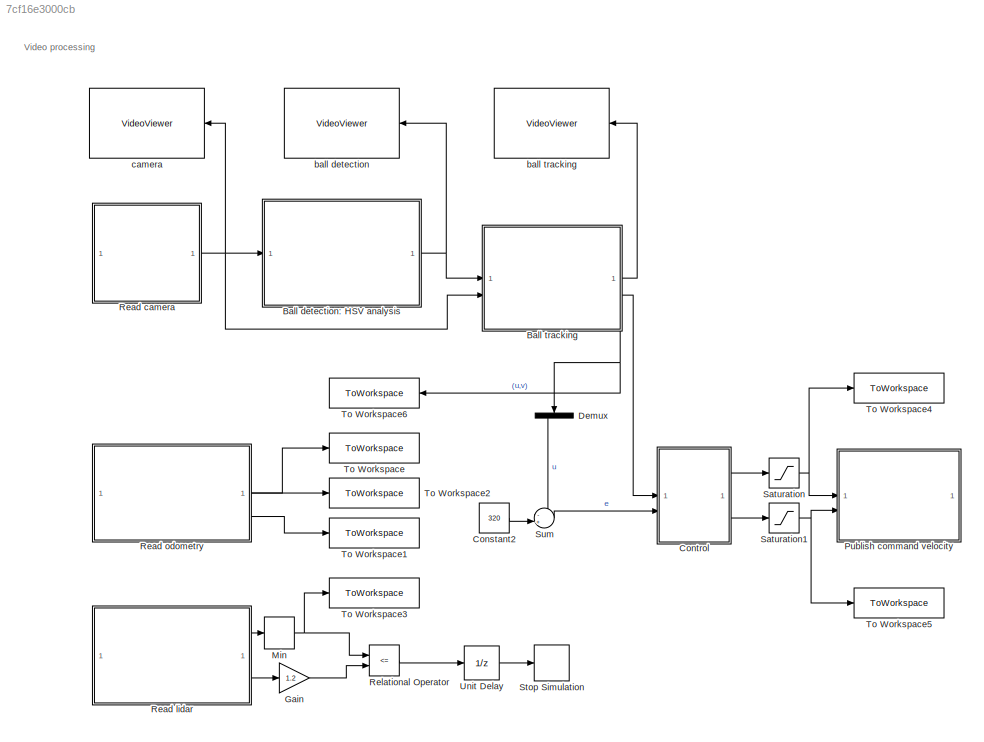
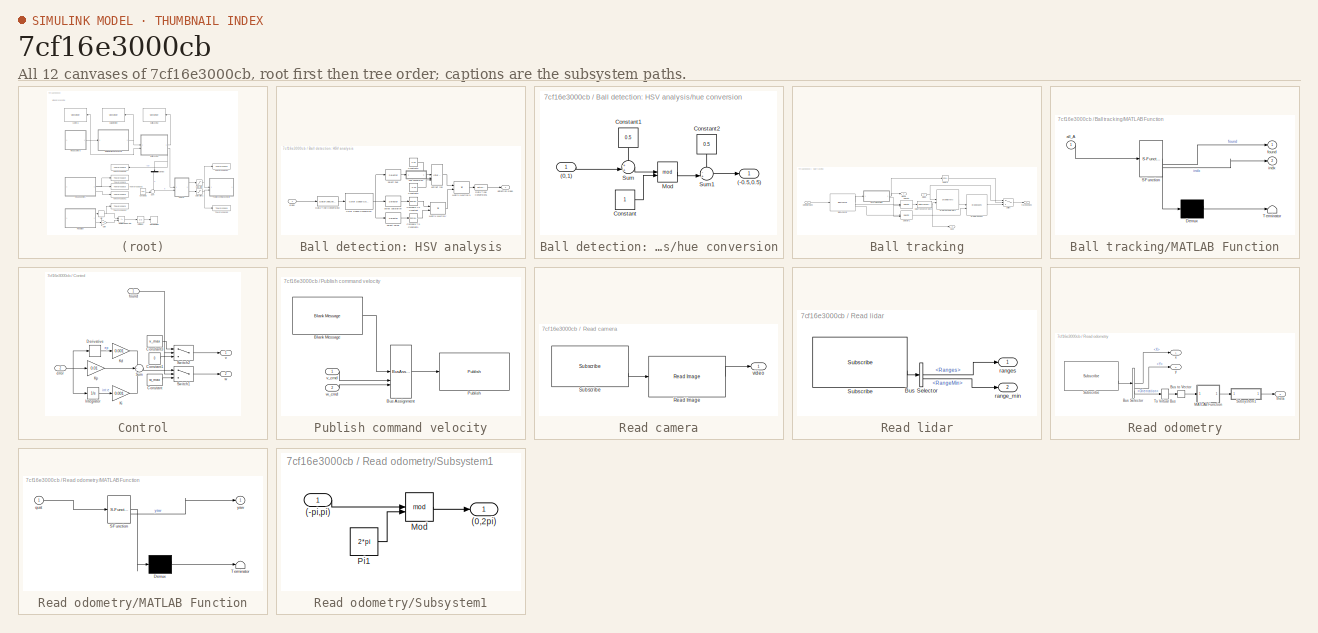
[diagram: thumbnail index - all 12 canvases of the model, root first then tree order]
MODEL slx_7cf16e3000cb
KIND model
CONFIG AbsTol = auto
CONFIG EnableMultiTasking = off
CONFIG FixedStep = 1/f_sim
CONFIG MaxStep = auto
CONFIG MinStep = auto
CONFIG RelTol = 1e-3
CONFIG SampleTimeConstraint = Unconstrained
CONFIG SolverName = FixedStepAuto
CONFIG StartTime = 0.0
CONFIG StopTime = inf
WORKSPACE source: mxarray member
WORKSPACE SL_ROS_VariableLengthArrays_MaxSizes: object (value not decoded)
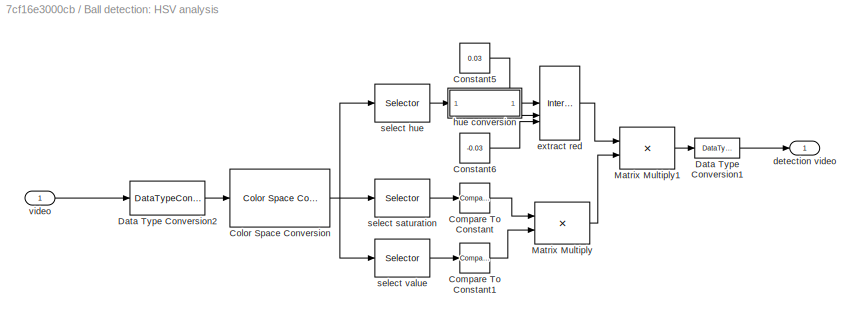
BLOCK [SubSystem] Ball detection: HSV analysis
  NameLocation = top
BLOCK [Reference] Ball detection: HSV analysis/Color Space Conversion  REF=visionconversions/Color Space
 Conversion
  SourceBlock = visionconversions/Color Space\n Conversion
  SourceType = Color Space Conversion
BLOCK [Reference] Ball detection: HSV analysis/Compare To Constant  REF=simulink/Logic and Bit
Operations/Compare
To Constant
  SourceBlock = simulink/Logic and Bit\nOperations/Compare\nTo Constant
  SourceType = Compare To Constant
BLOCK [Reference] Ball detection: HSV analysis/Compare To Constant1  REF=simulink/Logic and Bit
Operations/Compare
To Constant
  SourceBlock = simulink/Logic and Bit\nOperations/Compare\nTo Constant
  SourceType = Compare To Constant
BLOCK [Constant] Ball detection: HSV analysis/Constant5
  Value = 0.03
BLOCK [Constant] Ball detection: HSV analysis/Constant6
  Value = -0.03
BLOCK [DataTypeConversion] Ball detection: HSV analysis/Data Type Conversion1
  OutDataTypeStr = boolean
  RndMeth = Floor
  SaturateOnIntegerOverflow = off
BLOCK [DataTypeConversion] Ball detection: HSV analysis/Data Type Conversion2
  RndMeth = Floor
  SaturateOnIntegerOverflow = off
BLOCK [Product] Ball detection: HSV analysis/Matrix Multiply
BLOCK [Product] Ball detection: HSV analysis/Matrix Multiply1
BLOCK [Outport] Ball detection: HSV analysis/detection video
BLOCK [Reference] Ball detection: HSV analysis/extract red  REF=simulink/Logic and Bit
Operations/Interval Test
Dynamic
  SourceBlock = simulink/Logic and Bit\nOperations/Interval Test\nDynamic
  SourceType = Interval Test Dynamic
BLOCK [SubSystem] Ball detection: HSV analysis/hue conversion
BLOCK [Outport] Ball detection: HSV analysis/hue conversion/(-0.5,0.5)
BLOCK [Inport] Ball detection: HSV analysis/hue conversion/(0,1)
BLOCK [Constant] Ball detection: HSV analysis/hue conversion/Constant
BLOCK [Constant] Ball detection: HSV analysis/hue conversion/Constant1
  NameLocation = left
  Value = 0.5
BLOCK [Constant] Ball detection: HSV analysis/hue conversion/Constant2
  NameLocation = left
  Value = 0.5
BLOCK [Math] Ball detection: HSV analysis/hue conversion/Mod
  Operator = mod
BLOCK [Sum] Ball detection: HSV analysis/hue conversion/Sum
  Inputs = ++|
BLOCK [Sum] Ball detection: HSV analysis/hue conversion/Sum1
  Inputs = -+|
BLOCK [Selector] Ball detection: HSV analysis/select hue
  IndexOptions = Select all,Select all,Index vector (dialog)
  Indices = [1 3],1,1
  InputPortWidth = 3
  NumberOfDimensions = 3
  OutputSizes = 1,1,1
BLOCK [Selector] Ball detection: HSV analysis/select saturation
  IndexOptions = Select all,Select all,Index vector (dialog)
  Indices = [1 3],1,2
  InputPortWidth = 3
  NumberOfDimensions = 3
  OutputSizes = 1,1,1
BLOCK [Selector] Ball detection: HSV analysis/select value
  IndexOptions = Select all,Select all,Index vector (dialog)
  Indices = [1 3],1,2
  InputPortWidth = 3
  NumberOfDimensions = 3
  OutputSizes = 1,1,1
BLOCK [Inport] Ball detection: HSV analysis/video
BLOCK [SubSystem] Ball tracking
  NameLocation = top
  PortSchema = {"entries":[{"content":{"sides":[{"content":{"connectorIds":["In1","In2"]},"type":"ConnectorPlacement.EquallySpacedRectSide","uuid":"de28c0a8-2bee-4438-9aac-76140af63e3d"},{"content":{"connectorIds":["Out1","Out2"],"side":"RIGHT"},"type":"ConnectorPlacement.EquallySpacedRectSide","uuid":"c12b1d92-09c4-48b4-970d-3ef4bedca178"},{"content":{"side":"TOP"},"type":"ConnectorPlacement.EquallySpacedRectSi...<+385ch>
BLOCK [Reference] Ball tracking/Blob Analysis  REF=visionstatistics/Blob Analysis
  SourceBlock = visionstatistics/Blob Analysis
  SourceType = Blob Analysis
  Tag = vipblks_row_conv
BLOCK [DataTypeConversion] Ball tracking/Data Type Conversion3
  RndMeth = Floor
  SaturateOnIntegerOverflow = off
BLOCK [Reference] Ball tracking/IsZero  REF=simulink/Logic and Bit
Operations/Compare
To Zero
  LibrarySourceBlock = simulink/Quick Insert/Logic and Bit\nOperations/IsZero
  SourceBlock = simulink/Logic and Bit\nOperations/Compare\nTo Zero
  SourceType = Compare To Zero
BLOCK [SubSystem] Ball tracking/MATLAB Function
  ErrorFcn = Stateflow.Translate.translate
  PermitHierarchicalResolution = ExplicitOnly
  SFBlockType = MATLAB Function
  TreatAsAtomicUnit = on
BLOCK [Demux] Ball tracking/MATLAB Function/ Demux 
  Outputs = 1
BLOCK [S-Function] Ball tracking/MATLAB Function/ SFunction 
  EnableBusSupport = on
  FunctionName = sf_sfun
  PortCounts = [1 3]
  SFcnIsStateOwnerBlock = off
  SFunctionDeploymentMode = off
  Tag = Stateflow S-Function 2
BLOCK [Terminator] Ball tracking/MATLAB Function/ Terminator 
BLOCK [Inport] Ball tracking/MATLAB Function/all_A
BLOCK [Outport] Ball tracking/MATLAB Function/found
BLOCK [Outport] Ball tracking/MATLAB Function/indx
  Port = 2
BLOCK [Selector] Ball tracking/Selector
  IndexOptions = Index vector (port),Select all
  Indices = [1 3],1
  InputPortWidth = 3
  NumberOfDimensions = 2
  OutputSizes = 1,1
BLOCK [Selector] Ball tracking/Selector1
  IndexOptions = Index vector (port),Select all
  Indices = [1 3],1
  InputPortWidth = 3
  NumberOfDimensions = 2
  OutputSizes = 1,1
BLOCK [Switch] Ball tracking/Switch
  Criteria = u2 > Threshold
  InputSameDT = off
  SaturateOnIntegerOverflow = off
BLOCK [Outport] Ball tracking/cent
  Port = 3
BLOCK [Inport] Ball tracking/detection video
BLOCK [Reference] Ball tracking/draw green box  REF=visiontextngfix/Draw Shapes
  SourceBlock = visiontextngfix/Draw Shapes
  SourceType = Draw Shapes
BLOCK [Reference] Ball tracking/draw red centermark  REF=visiontextngfix/Draw Markers
  SourceBlock = visiontextngfix/Draw Markers
  SourceType = Draw Markers
BLOCK [Outport] Ball tracking/found
  Port = 2
BLOCK [Outport] Ball tracking/tracking video
BLOCK [Inport] Ball tracking/video
  Port = 2
BLOCK [Constant] Constant2
  Value = 320
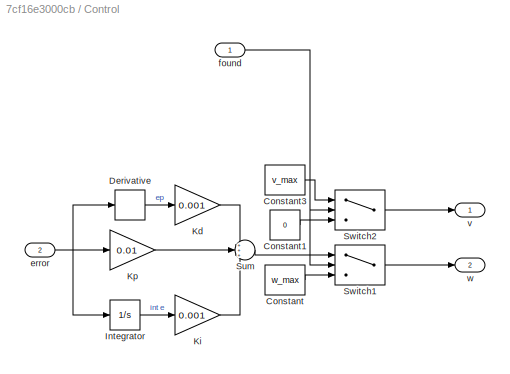
BLOCK [SubSystem] Control
BLOCK [Constant] Control/Constant
  Value = w_max
BLOCK [Constant] Control/Constant1
  Value = 0
BLOCK [Constant] Control/Constant3
  Value = v_max
BLOCK [Derivative] Control/Derivative
BLOCK [Integrator] Control/Integrator
BLOCK [Gain] Control/Kd
  Gain = 0.001
BLOCK [Gain] Control/Ki
  Gain = 0.001
BLOCK [Gain] Control/Kp
  Gain = 0.01
BLOCK [Sum] Control/Sum
  Inputs = +++
BLOCK [Switch] Control/Switch1
  Criteria = u2 > Threshold
  InputSameDT = off
  SaturateOnIntegerOverflow = off
BLOCK [Switch] Control/Switch2
  Criteria = u2 > Threshold
  InputSameDT = off
  SaturateOnIntegerOverflow = off
BLOCK [Inport] Control/error
  Port = 2
BLOCK [Inport] Control/found
BLOCK [Outport] Control/v
BLOCK [Outport] Control/w
  Port = 2
BLOCK [Demux] Demux
  NameLocation = left
  Outputs = 2
BLOCK [Gain] Gain
  Gain = 1.2
BLOCK [MinMax] Min
BLOCK [SubSystem] Publish command velocity
BLOCK [Reference] Publish command velocity/Blank Message  REF=robotlib/Blank Message
  SourceBlock = robotlib/Blank Message
  SourceType = ROS Blank Message
BLOCK [BusAssignment] Publish command velocity/Bus Assignment
  AssignedSignals = Linear.X,Angular.Z
BLOCK [Reference] Publish command velocity/Publish  REF=robotlib/Publish
  SourceBlock = robotlib/Publish
  SourceType = ROS Publish
BLOCK [Inport] Publish command velocity/v_cmd
BLOCK [Inport] Publish command velocity/w_cmd
  Port = 2
BLOCK [SubSystem] Read camera
  NameLocation = top
BLOCK [Reference] Read camera/Read Image  REF=robotlib/Read Image
  SourceBlock = robotlib/Read Image
  SourceType = ros.slros.internal.block.ReadImage
BLOCK [Reference] Read camera/Subscribe  REF=robotlib/Subscribe
  SourceBlock = robotlib/Subscribe
  SourceType = ROS Subscribe
BLOCK [Outport] Read camera/video
BLOCK [SubSystem] Read lidar
BLOCK [BusSelector] Read lidar/Bus Selector
  OutputSignals = Ranges,RangeMin
BLOCK [Reference] Read lidar/Subscribe  REF=robotlib/Subscribe
  SourceBlock = robotlib/Subscribe
  SourceType = ROS Subscribe
BLOCK [Outport] Read lidar/range_min
  Port = 2
BLOCK [Outport] Read lidar/ranges
BLOCK [SubSystem] Read odometry
BLOCK [BusSelector] Read odometry/Bus Selector
  OutputSignals = Pose.Pose.Position.X,Pose.Pose.Position.Y,Pose.Pose.Orientation
BLOCK [BusToVector] Read odometry/Bus to Vector
BLOCK [SubSystem] Read odometry/MATLAB Function
  ErrorFcn = Stateflow.Translate.translate
  PermitHierarchicalResolution = ExplicitOnly
  SFBlockType = MATLAB Function
  TreatAsAtomicUnit = on
BLOCK [Demux] Read odometry/MATLAB Function/ Demux 
  Outputs = 1
BLOCK [S-Function] Read odometry/MATLAB Function/ SFunction 
  EnableBusSupport = on
  FunctionName = sf_sfun
  PortCounts = [1 2]
  SFcnIsStateOwnerBlock = off
  SFunctionDeploymentMode = off
  Tag = Stateflow S-Function 1
BLOCK [Terminator] Read odometry/MATLAB Function/ Terminator 
BLOCK [Inport] Read odometry/MATLAB Function/quat
BLOCK [Outport] Read odometry/MATLAB Function/yaw
BLOCK [Reference] Read odometry/Subscribe  REF=robotlib/Subscribe
  SourceBlock = robotlib/Subscribe
  SourceType = ROS Subscribe
BLOCK [SubSystem] Read odometry/Subsystem1
BLOCK [Inport] Read odometry/Subsystem1/(-pi,pi)
BLOCK [Outport] Read odometry/Subsystem1/(0,2pi)
BLOCK [Math] Read odometry/Subsystem1/Mod
  Operator = mod
BLOCK [Constant] Read odometry/Subsystem1/Pi1
  OutDataTypeStr = Inherit: Inherit via back propagation
  Value = 2*pi
BLOCK [SignalConversion] Read odometry/To Virtual Bus
  ConversionOutput = Virtual bus
  OverrideOpt = off
BLOCK [Outport] Read odometry/theta
  Port = 2
BLOCK [Outport] Read odometry/x
BLOCK [Outport] Read odometry/y
  Port = 3
BLOCK [RelationalOperator] Relational Operator
  InputSameDT = off
  Operator = <=
  OutDataTypeStr = boolean
  RndMeth = Simplest
BLOCK [Saturate] Saturation
  LowerLimit = v_min
  UpperLimit = v_max
BLOCK [Saturate] Saturation1
  LowerLimit = w_min
  UpperLimit = w_max
BLOCK [Stop] Stop Simulation
BLOCK [Sum] Sum
  Inputs = -+|
BLOCK [ToWorkspace] To Workspace
  FixptAsFi = on
  MaxDataPoints = inf
  SampleTime = -1
  Save2DSignal = 2-D array (concatenate along first dimension)
  VariableName = x
BLOCK [ToWorkspace] To Workspace1
  FixptAsFi = on
  MaxDataPoints = inf
  SampleTime = -1
  Save2DSignal = 2-D array (concatenate along first dimension)
  VariableName = y
BLOCK [ToWorkspace] To Workspace2
  FixptAsFi = on
  MaxDataPoints = inf
  SampleTime = -1
  Save2DSignal = 2-D array (concatenate along first dimension)
  VariableName = theta
BLOCK [ToWorkspace] To Workspace3
  FixptAsFi = on
  MaxDataPoints = inf
  SampleTime = -1
  Save2DSignal = 2-D array (concatenate along first dimension)
  VariableName = scan
BLOCK [ToWorkspace] To Workspace4
  FixptAsFi = on
  MaxDataPoints = inf
  SampleTime = -1
  Save2DSignal = 2-D array (concatenate along first dimension)
  VariableName = v_cmd
BLOCK [ToWorkspace] To Workspace5
  FixptAsFi = on
  MaxDataPoints = inf
  SampleTime = -1
  Save2DSignal = 2-D array (concatenate along first dimension)
  VariableName = w_cmd
BLOCK [ToWorkspace] To Workspace6
  FixptAsFi = on
  MaxDataPoints = inf
  NameLocation = top
  SampleTime = -1
  Save2DSignal = 2-D array (concatenate along first dimension)
  VariableName = centr_position
BLOCK [UnitDelay] Unit Delay
  HasFrameUpgradeWarning = on
  SampleTime = 30*1/f_sim
BLOCK [VideoViewer] ball detection
  Commented = on
  FigPos = [741 775 418 304]
  NameLocation = top
  OpenAtMdlStart = off
  ScopeSpecificationString = vipscopes.VideoViewerScopeCfg('CurrentConfiguration', extmgr.ConfigurationSet(extmgr.Configuration('Core','General UI',true),extmgr.Configuration('Core','Source UI',true),extmgr.Configuration('Sources','WiredSimulink',true),extmgr.Configuration('Visuals','Video',true),extmgr.Configuration('Tools','Image Navigation Tools',true,'FitToView',true,'Magnification',0.579166666666666),extmgr.Configuration...<+126ch>
  colormapValue = gray(256)
BLOCK [VideoViewer] ball tracking
  FigPos = [30 943 713 468]
  NameLocation = top
  ScopeSpecificationString = vipscopes.VideoViewerScopeCfg('CurrentConfiguration', extmgr.ConfigurationSet(extmgr.Configuration('Core','General UI',true),extmgr.Configuration('Core','Source UI',true),extmgr.Configuration('Sources','WiredSimulink',true),extmgr.Configuration('Visuals','Video',true),extmgr.Configuration('Tools','Image Navigation Tools',true,'Magnification',0.935416666666667,'FitToView',true),extmgr.Configuration...<+125ch>
  colormapValue = gray(256)
BLOCK [VideoViewer] camera
  Commented = on
  FigPos = [384 710 438 290]
  NameLocation = top
  OpenAtMdlStart = off
  ScopeSpecificationString = vipscopes.VideoViewerScopeCfg('CurrentConfiguration', extmgr.ConfigurationSet(extmgr.Configuration('Core','General UI',true),extmgr.Configuration('Core','Source UI',true),extmgr.Configuration('Sources','WiredSimulink',true),extmgr.Configuration('Visuals','Video',true),extmgr.Configuration('Tools','Image Navigation Tools',true,'Magnification',0.55),extmgr.Configuration('Tools','Image Tool',true),ex...<+96ch>
  colormapValue = gray(256)
ANNOTATION (root): Video processing
NET Ball detection: HSV analysis/Color Space Conversion:1 -> Ball detection: HSV analysis/select hue:1, Ball detection: HSV analysis/select saturation:1, Ball detection: HSV analysis/select value:1
LINE Ball detection: HSV analysis/Compare To Constant1:1 -> Ball detection: HSV analysis/Matrix Multiply:2
LINE Ball detection: HSV analysis/Compare To Constant:1 -> Ball detection: HSV analysis/Matrix Multiply:1
LINE Ball detection: HSV analysis/Constant5:1 -> Ball detection: HSV analysis/extract red:1
LINE Ball detection: HSV analysis/Constant6:1 -> Ball detection: HSV analysis/extract red:3
LINE Ball detection: HSV analysis/Data Type Conversion1:1 -> Ball detection: HSV analysis/detection video:1
LINE Ball detection: HSV analysis/Data Type Conversion2:1 -> Ball detection: HSV analysis/Color Space Conversion:1
LINE Ball detection: HSV analysis/Matrix Multiply1:1 -> Ball detection: HSV analysis/Data Type Conversion1:1
LINE Ball detection: HSV analysis/Matrix Multiply:1 -> Ball detection: HSV analysis/Matrix Multiply1:2
LINE Ball detection: HSV analysis/extract red:1 -> Ball detection: HSV analysis/Matrix Multiply1:1
LINE Ball detection: HSV analysis/hue conversion/(0,1):1 -> Ball detection: HSV analysis/hue conversion/Sum:2
LINE Ball detection: HSV analysis/hue conversion/Constant1:1 -> Ball detection: HSV analysis/hue conversion/Sum:1
LINE Ball detection: HSV analysis/hue conversion/Constant2:1 -> Ball detection: HSV analysis/hue conversion/Sum1:1
LINE Ball detection: HSV analysis/hue conversion/Constant:1 -> Ball detection: HSV analysis/hue conversion/Mod:2
LINE Ball detection: HSV analysis/hue conversion/Mod:1 -> Ball detection: HSV analysis/hue conversion/Sum1:2
LINE Ball detection: HSV analysis/hue conversion/Sum1:1 -> Ball detection: HSV analysis/hue conversion/(-0.5,0.5):1
LINE Ball detection: HSV analysis/hue conversion/Sum:1 -> Ball detection: HSV analysis/hue conversion/Mod:1
LINE Ball detection: HSV analysis/hue conversion:1 -> Ball detection: HSV analysis/extract red:2
LINE Ball detection: HSV analysis/select hue:1 -> Ball detection: HSV analysis/hue conversion:1
LINE Ball detection: HSV analysis/select saturation:1 -> Ball detection: HSV analysis/Compare To Constant:1
LINE Ball detection: HSV analysis/select value:1 -> Ball detection: HSV analysis/Compare To Constant1:1
LINE Ball detection: HSV analysis/video:1 -> Ball detection: HSV analysis/Data Type Conversion2:1
NET Ball detection: HSV analysis:1 -> Ball tracking:1, ball detection:1
LINE Ball tracking/Blob Analysis:1 -> Ball tracking/MATLAB Function:1
LINE Ball tracking/Blob Analysis:2 -> Ball tracking/Selector:1
LINE Ball tracking/Blob Analysis:3 -> Ball tracking/Selector1:1
NET Ball tracking/Data Type Conversion3:1 -> Ball tracking/cent:1, Ball tracking/draw red centermark:2
LINE Ball tracking/IsZero:1 -> Ball tracking/Switch:2
NET Ball tracking/MATLAB Function:1 -> Ball tracking/IsZero:1, Ball tracking/found:1
NET Ball tracking/MATLAB Function:2 -> Ball tracking/Selector1:2, Ball tracking/Selector:2
LINE Ball tracking/Selector1:1 -> Ball tracking/draw green box:2
LINE Ball tracking/Selector:1 -> Ball tracking/Data Type Conversion3:1
LINE Ball tracking/Switch:1 -> Ball tracking/tracking video:1
LINE Ball tracking/detection video:1 -> Ball tracking/Blob Analysis:1
LINE Ball tracking/draw green box:1 -> Ball tracking/Switch:3
LINE Ball tracking/draw red centermark:1 -> Ball tracking/draw green box:1
NET Ball tracking/video:1 -> Ball tracking/Switch:1, Ball tracking/draw red centermark:1
LINE Ball tracking:1 -> ball tracking:1
LINE Ball tracking:2 -> Control:1
NET Ball tracking:3 -> Demux:1, To Workspace6:1
LINE Constant2:1 -> Sum:2
LINE Control/Constant1:1 -> Control/Switch2:3
LINE Control/Constant3:1 -> Control/Switch2:1
LINE Control/Constant:1 -> Control/Switch1:3
LINE Control/Derivative:1 -> Control/Kd:1
LINE Control/Integrator:1 -> Control/Ki:1
LINE Control/Kd:1 -> Control/Sum:1
LINE Control/Ki:1 -> Control/Sum:3
LINE Control/Kp:1 -> Control/Sum:2
LINE Control/Sum:1 -> Control/Switch1:1
LINE Control/Switch1:1 -> Control/w:1
LINE Control/Switch2:1 -> Control/v:1
NET Control/error:1 -> Control/Derivative:1, Control/Integrator:1, Control/Kp:1
NET Control/found:1 -> Control/Switch1:2, Control/Switch2:2
LINE Control:1 -> Saturation:1
LINE Control:2 -> Saturation1:1
LINE Demux:1 -> Sum:1
LINE Gain:1 -> Relational Operator:2
NET Min:1 -> Relational Operator:1, To Workspace3:1
LINE Publish command velocity/Blank Message:1 -> Publish command velocity/Bus Assignment:1
LINE Publish command velocity/Bus Assignment:1 -> Publish command velocity/Publish:1
LINE Publish command velocity/v_cmd:1 -> Publish command velocity/Bus Assignment:2
LINE Publish command velocity/w_cmd:1 -> Publish command velocity/Bus Assignment:3
LINE Read camera/Read Image:1 -> Read camera/video:1
LINE Read camera/Subscribe:2 -> Read camera/Read Image:1
NET Read camera:1 -> Ball detection: HSV analysis:1, Ball tracking:2, camera:1
LINE Read lidar/Bus Selector:1 -> Read lidar/ranges:1
LINE Read lidar/Bus Selector:2 -> Read lidar/range_min:1
LINE Read lidar/Subscribe:2 -> Read lidar/Bus Selector:1
LINE Read lidar:1 -> Min:1
LINE Read lidar:2 -> Gain:1
LINE Read odometry/Bus Selector:1 -> Read odometry/x:1
LINE Read odometry/Bus Selector:2 -> Read odometry/y:1
LINE Read odometry/Bus Selector:3 -> Read odometry/To Virtual Bus:1
LINE Read odometry/Bus to Vector:1 -> Read odometry/MATLAB Function:1
LINE Read odometry/MATLAB Function:1 -> Read odometry/Subsystem1:1
LINE Read odometry/Subscribe:2 -> Read odometry/Bus Selector:1
LINE Read odometry/Subsystem1/(-pi,pi):1 -> Read odometry/Subsystem1/Mod:1
LINE Read odometry/Subsystem1/Mod:1 -> Read odometry/Subsystem1/(0,2pi):1
LINE Read odometry/Subsystem1/Pi1:1 -> Read odometry/Subsystem1/Mod:2
LINE Read odometry/Subsystem1:1 -> Read odometry/theta:1
LINE Read odometry/To Virtual Bus:1 -> Read odometry/Bus to Vector:1
LINE Read odometry:1 -> To Workspace:1
LINE Read odometry:2 -> To Workspace2:1
LINE Read odometry:3 -> To Workspace1:1
LINE Relational Operator:1 -> Unit Delay:1
NET Saturation1:1 -> Publish command velocity:2, To Workspace5:1
NET Saturation:1 -> Publish command velocity:1, To Workspace4:1
LINE Sum:1 -> Control:2
LINE Unit Delay:1 -> Stop Simulation:1
note: NET lines group one-source signal fan-out (src -> all destinations, sorted); 1:1 wires keep LINE
CHART Ball tracking/MATLAB Function states=1 transitions=1
  STATE_LABEL 'eML_blk_kernel()'
  STATE_LABEL 'SCRIPT:\nfunction [found,indx]=FindMaxArea(all_A)\n\n[max_A,indx]=max(all_A);\n\nif isempty(indx) || max_A==-1\n    found=0;\nelse\n    found=1;\nend\n\nend'
CHART Read odometry/MATLAB Function states=1 transitions=1
  STATE_LABEL 'eML_blk_kernel()'
  STATE_LABEL 'SCRIPT:\nfunction yaw=quat2yaw(quat)\n\nq=zeros(1,4);\n\nq(1)=quat(1);\nq(2)=quat(2);\nq(3)=quat(3);\nq(4)=quat(4);\n\neul=quat2eul(q);\n\nyaw=eul(3);\n\nend\n'
CHART  states=0 transitions=0
CHART  states=0 transitions=0
